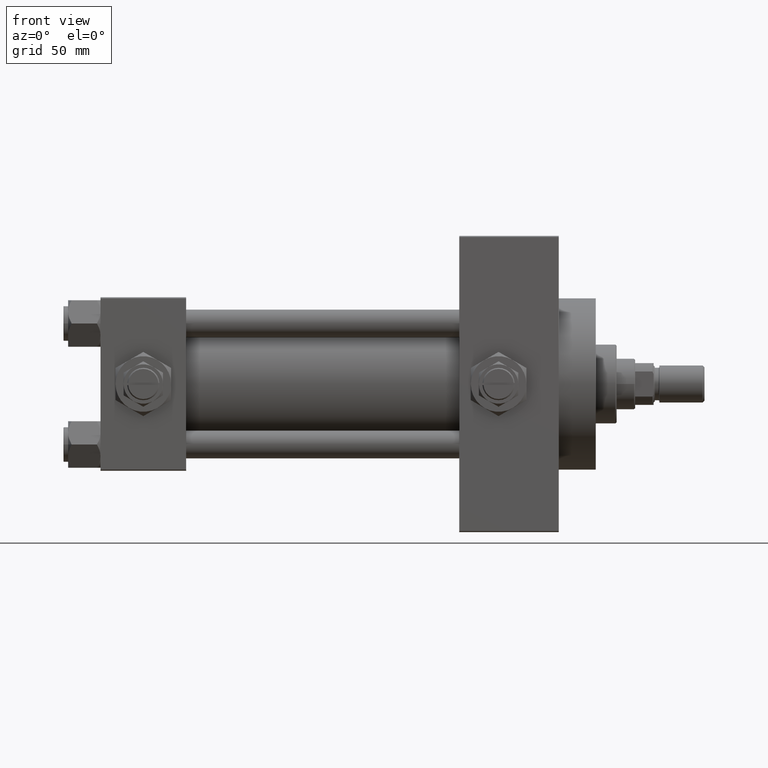
[diagram: clean part render]
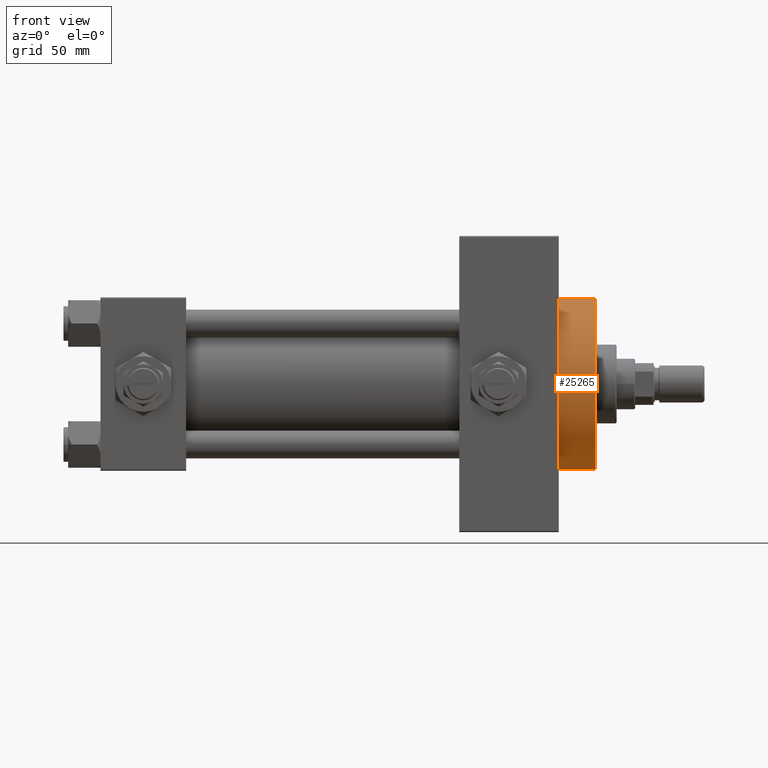
[diagram: same view with one face highlighted and labeled with its STEP entity id]
A machine part, front view. The second image highlights one B-rep face of the part: STEP entity #25265.
In plain terms, the highlighted cylindrical surface (partial cylindrical patch) has radius 37 mm, axis along (-1, -0, -0).
Its self-contained STEP definition (entity closure, byte-faithful):
#762 = DIRECTION ( 'NONE',  ( 0.000000000000000000, 0.000000000000000000, -1.000000000000000000 ) ) ;
#3187 = ORIENTED_EDGE ( 'NONE', *, *, #40513, .T. ) ;
#5372 = LINE ( 'NONE', #5887, #16637 ) ;
#5887 = CARTESIAN_POINT ( 'NONE',  ( 214.0000000000000284, 0.000000000000000000, 37.00000000000000000 ) ) ;
#9362 = AXIS2_PLACEMENT_3D ( 'NONE', #28524, #24990, #32315 ) ;
#12062 = LINE ( 'NONE', #31013, #27231 ) ;
#12421 = CARTESIAN_POINT ( 'NONE',  ( 214.0000000000000284, 0.000000000000000000, 0.000000000000000000 ) ) ;
#13332 = CIRCLE ( 'NONE', #45610, 37.00000000000000000 ) ;
#14324 = CARTESIAN_POINT ( 'NONE',  ( 214.0000000000000284, 0.000000000000000000, 37.00000000000000000 ) ) ;
#14786 = VERTEX_POINT ( 'NONE', #14324 ) ;
#15359 = CARTESIAN_POINT ( 'NONE',  ( 214.0000000000000284, 4.531193156845206793E-15, -37.00000000000000000 ) ) ;
#16637 = VECTOR ( 'NONE', #47323, 1000.000000000000000 ) ;
#20677 = CARTESIAN_POINT ( 'NONE',  ( 198.0000000000000000, 4.531193156845206793E-15, -37.00000000000000000 ) ) ;
#20879 = CARTESIAN_POINT ( 'NONE',  ( 198.0000000000000000, 0.000000000000000000, 37.00000000000000000 ) ) ;
#21724 = ORIENTED_EDGE ( 'NONE', *, *, #29385, .F. ) ;
#23086 = ORIENTED_EDGE ( 'NONE', *, *, #24123, .F. ) ;
#24123 = EDGE_CURVE ( 'NONE', #14786, #25409, #13332, .T. ) ;
#24225 = AXIS2_PLACEMENT_3D ( 'NONE', #27527, #39147, #762 ) ;
#24656 = VERTEX_POINT ( 'NONE', #20879 ) ;
#24734 = FACE_OUTER_BOUND ( 'NONE', #44933, .T. ) ;
#24990 = DIRECTION ( 'NONE',  ( -1.000000000000000000, -0.000000000000000000, -0.000000000000000000 ) ) ;
#25265 = ADVANCED_FACE ( 'NONE', ( #24734 ), #28020, .T. ) ;
#25409 = VERTEX_POINT ( 'NONE', #15359 ) ;
#26479 = EDGE_CURVE ( 'NONE', #14786, #24656, #5372, .T. ) ;
#27231 = VECTOR ( 'NONE', #38082, 1000.000000000000000 ) ;
#27527 = CARTESIAN_POINT ( 'NONE',  ( 198.0000000000000000, 0.000000000000000000, 0.000000000000000000 ) ) ;
#28020 = CYLINDRICAL_SURFACE ( 'NONE', #9362, 37.00000000000000000 ) ;
#28524 = CARTESIAN_POINT ( 'NONE',  ( 214.0000000000000284, 0.000000000000000000, 0.000000000000000000 ) ) ;
#28555 = ORIENTED_EDGE ( 'NONE', *, *, #26479, .T. ) ;
#29385 = EDGE_CURVE ( 'NONE', #25409, #32874, #12062, .T. ) ;
#31013 = CARTESIAN_POINT ( 'NONE',  ( 214.0000000000000284, 4.531193156845206793E-15, -37.00000000000000000 ) ) ;
#32122 = DIRECTION ( 'NONE',  ( 1.000000000000000000, 0.000000000000000000, 0.000000000000000000 ) ) ;
#32315 = DIRECTION ( 'NONE',  ( 0.000000000000000000, 0.000000000000000000, 1.000000000000000000 ) ) ;
#32874 = VERTEX_POINT ( 'NONE', #20677 ) ;
#37923 = CIRCLE ( 'NONE', #24225, 37.00000000000000000 ) ;
#38082 = DIRECTION ( 'NONE',  ( -1.000000000000000000, -0.000000000000000000, -0.000000000000000000 ) ) ;
#39147 = DIRECTION ( 'NONE',  ( 1.000000000000000000, 0.000000000000000000, 0.000000000000000000 ) ) ;
#40513 = EDGE_CURVE ( 'NONE', #24656, #32874, #37923, .T. ) ;
#43480 = DIRECTION ( 'NONE',  ( 0.000000000000000000, 0.000000000000000000, -1.000000000000000000 ) ) ;
#44933 = EDGE_LOOP ( 'NONE', ( #21724, #23086, #28555, #3187 ) ) ;
#45610 = AXIS2_PLACEMENT_3D ( 'NONE', #12421, #32122, #43480 ) ;
#47323 = DIRECTION ( 'NONE',  ( -1.000000000000000000, -0.000000000000000000, -0.000000000000000000 ) ) ;